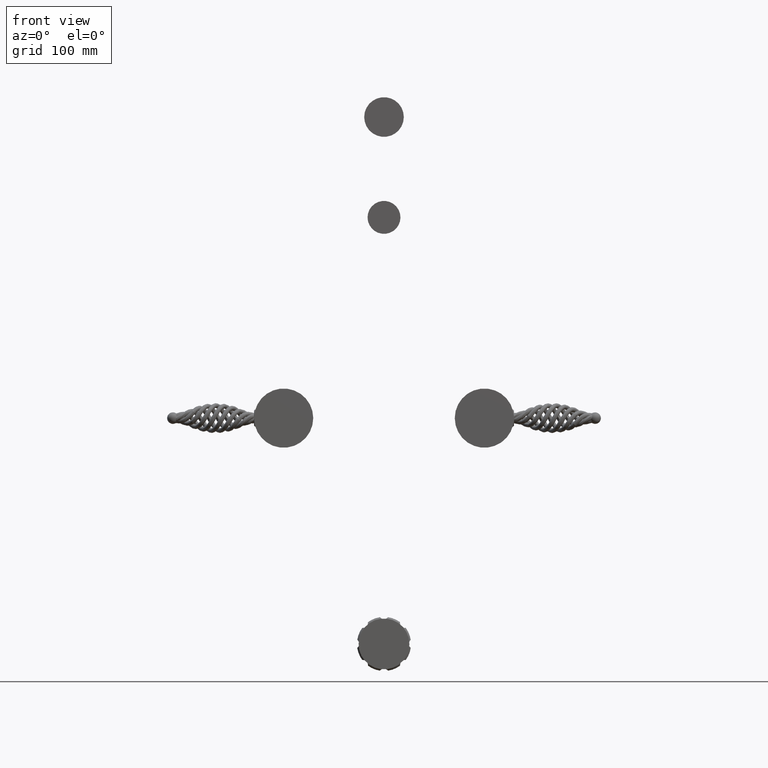
[diagram: clean part render]
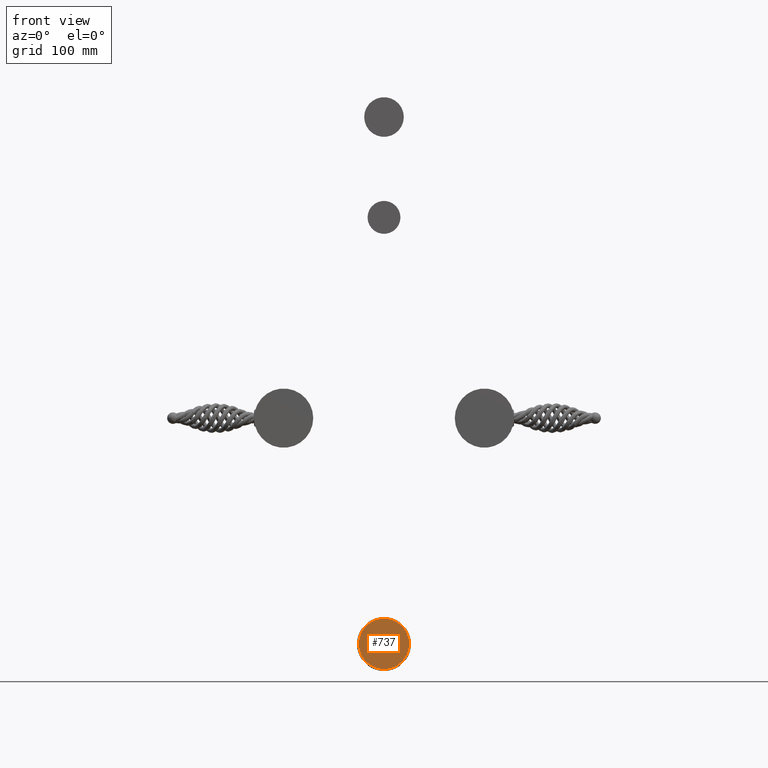
[diagram: same view with one face highlighted and labeled with its STEP entity id]
A machine part, front view. The second image highlights one B-rep face of the part: STEP entity #737.
In plain terms, the highlighted planar face has unit normal (0, -1, 0).
Its self-contained STEP definition (entity closure, byte-faithful):
#596=CARTESIAN_POINT('',(0.E0,-2.00783E-1,-9.E0));
#597=DIRECTION('',(0.E0,-1.E0,0.E0));
#598=DIRECTION('',(1.E0,0.E0,0.E0));
#599=AXIS2_PLACEMENT_3D('',#596,#597,#598);
#609=CARTESIAN_POINT('',(0.E0,-2.00783E-1,-9.E0));
#610=DIRECTION('',(0.E0,1.E0,0.E0));
#611=DIRECTION('',(1.E0,0.E0,0.E0));
#612=AXIS2_PLACEMENT_3D('',#609,#610,#611);
#702=CARTESIAN_POINT('',(1.0125E0,-2.00783E-1,-9.E0));
#704=VERTEX_POINT('',#702);
#708=CARTESIAN_POINT('',(-1.0125E0,-2.00783E-1,-9.E0));
#710=VERTEX_POINT('',#708);
#726=CARTESIAN_POINT('',(0.E0,-2.00783E-1,-9.E0));
#727=DIRECTION('',(0.E0,-1.E0,0.E0));
#728=DIRECTION('',(-1.E0,0.E0,0.E0));
#729=AXIS2_PLACEMENT_3D('',#726,#727,#728);
#730=PLANE('',#729);
#732=ORIENTED_EDGE('',*,*,#731,.F.);
#734=ORIENTED_EDGE('',*,*,#733,.T.);
#735=EDGE_LOOP('',(#732,#734));
#736=FACE_OUTER_BOUND('',#735,.F.);
#737=ADVANCED_FACE('',(#736),#730,.T.);
#600=CIRCLE('',#599,1.0125E0);
#613=CIRCLE('',#612,1.0125E0);
#731=EDGE_CURVE('',#704,#710,#600,.T.);
#733=EDGE_CURVE('',#704,#710,#613,.T.);